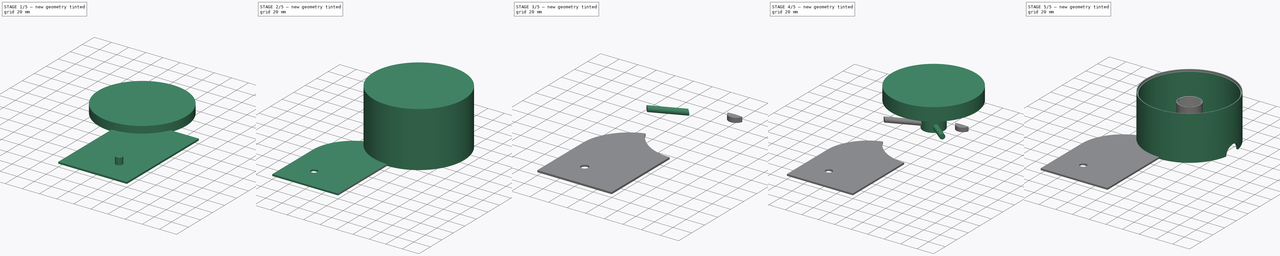
[diagram: build sequence overview — one tinted view per stage of 5, left to right]
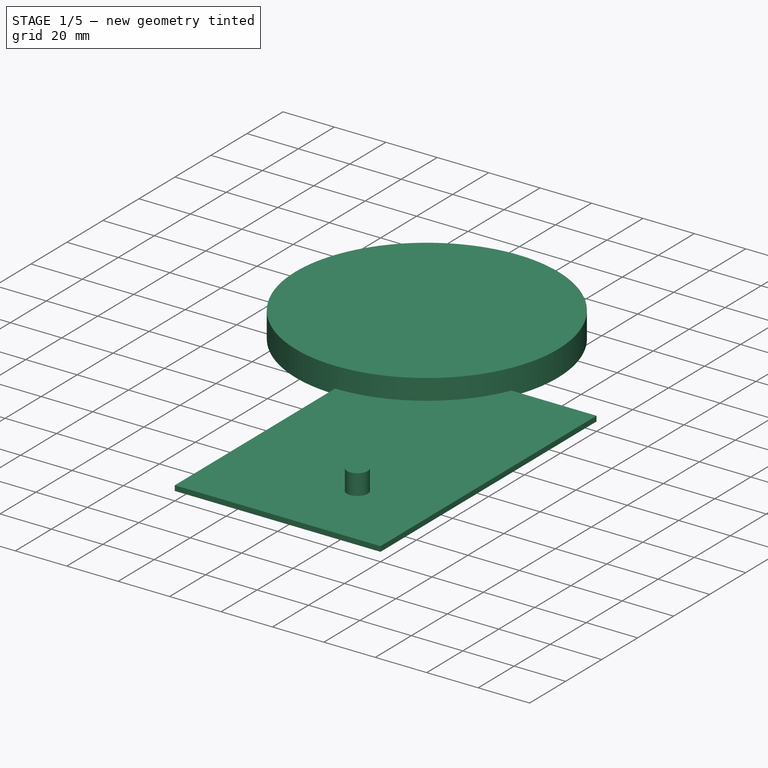
[diagram: stage 1 of 5 — iso view after this stage's code; geometry added in this stage tinted green]
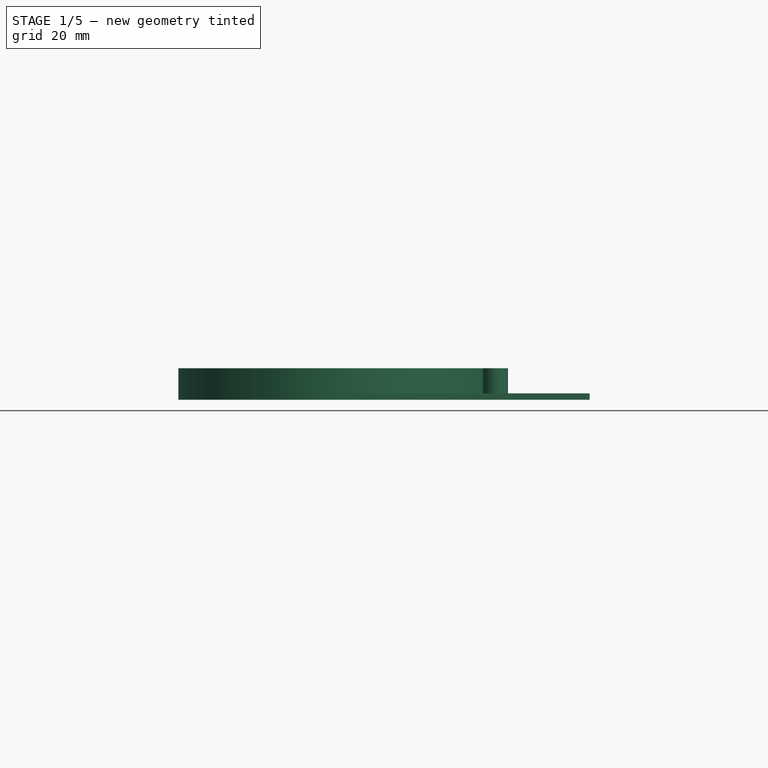
[diagram: stage 1 of 5 — front view after this stage's code; geometry added in this stage tinted green]
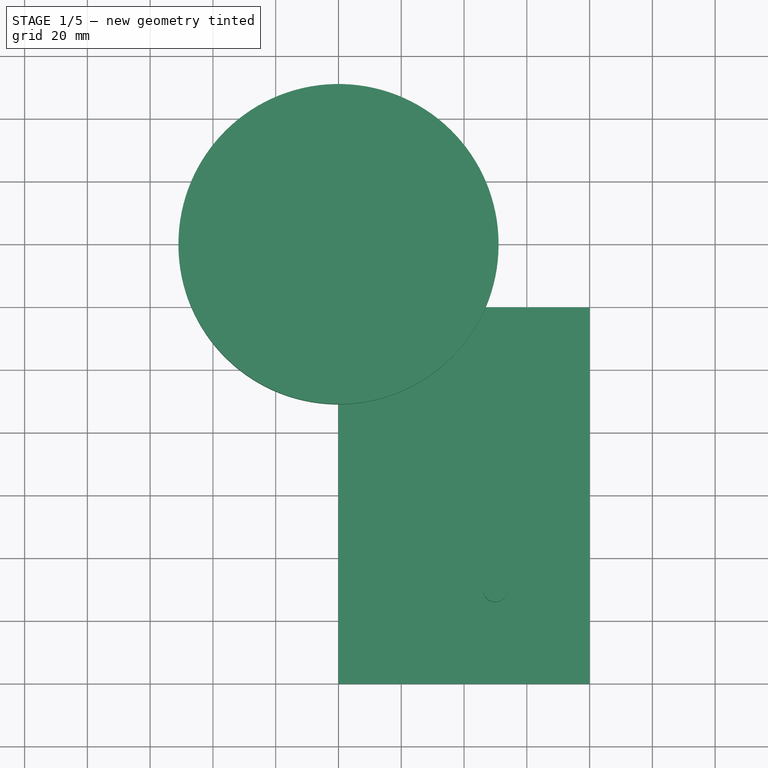
[diagram: stage 1 of 5 — top view after this stage's code; geometry added in this stage tinted green]
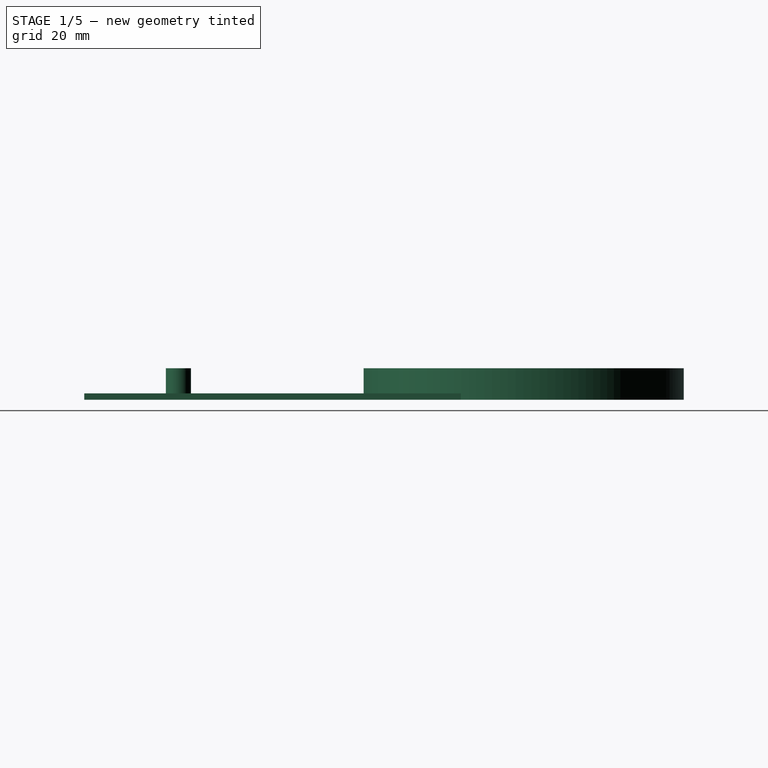
[diagram: stage 1 of 5 — right view after this stage's code; geometry added in this stage tinted green]
FCSTD DOCUMENT  (FreeCAD 0.16R6712 (Git))
Label: attachment
License: All rights reserved
LicenseURL: http://en.wikipedia.org/wiki/All_rights_reserved
objects: Part::Cylinder×14, Part::Cut×9, Part::Mirroring×4, App::DocumentObjectGroup×2, Sketcher::SketchObject×1, Part::Sweep×1, Part::Box×1, Part::Fillet×1, Part::MultiCommon×1
note: 32 computed .brp shape members not serialized (recipe doc carries the construction recipe); baked Part::Feature solids carry a one-line shape summary decoded from their .brp

FEATURE [App::DocumentObjectGroup] Group001  label="Combined"
  Group = -> [Cut005,Group,Part__Mirroring002,Part__Mirroring003]
FEATURE [Part::Box] Box  label="Cube"
  Height = 2
  Length = 80
  Placement = pos=(0,-140,0) rot=(0,0,1;0rad)
  Width = 120
FEATURE [Part::Cylinder] Cylinder
  Angle = 360
  Height = 10
  Placement = pos=(50,-110,0) rot=(0,0,1;0rad)
  Radius = 4
  expr: Placement.Base.y = -110
FEATURE [Part::Cylinder] Cylinder016  label="Cylinder017"
  Angle = 360
  Height = 10
  Radius = 51
FEATURE [Part::Cylinder] Cylinder017  label="Cylinder018"
  Angle = 360
  Height = 5
  Placement = pos=(0,51,0) rot=(0,0,1;0rad)
  Radius = 8
FEATURE [Part::Cylinder] Cylinder018  label="Cylinder019"
  Angle = 360
  Height = 10
  Radius = 50
FEATURE [Part::MultiCommon] Common
  Shapes = -> [Cylinder017,Cylinder018]
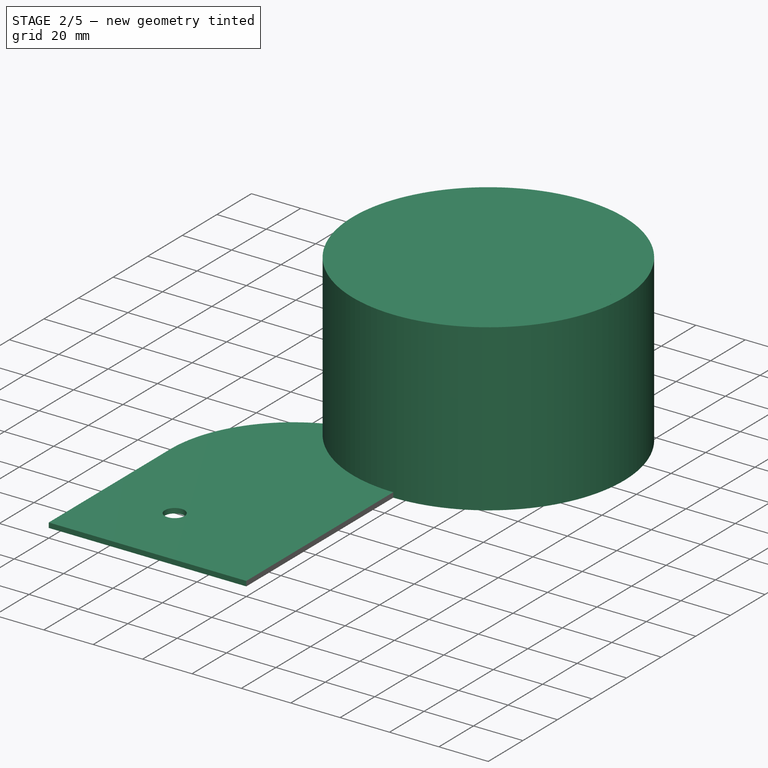
[diagram: stage 2 of 5 — iso view after this stage's code; geometry added in this stage tinted green]
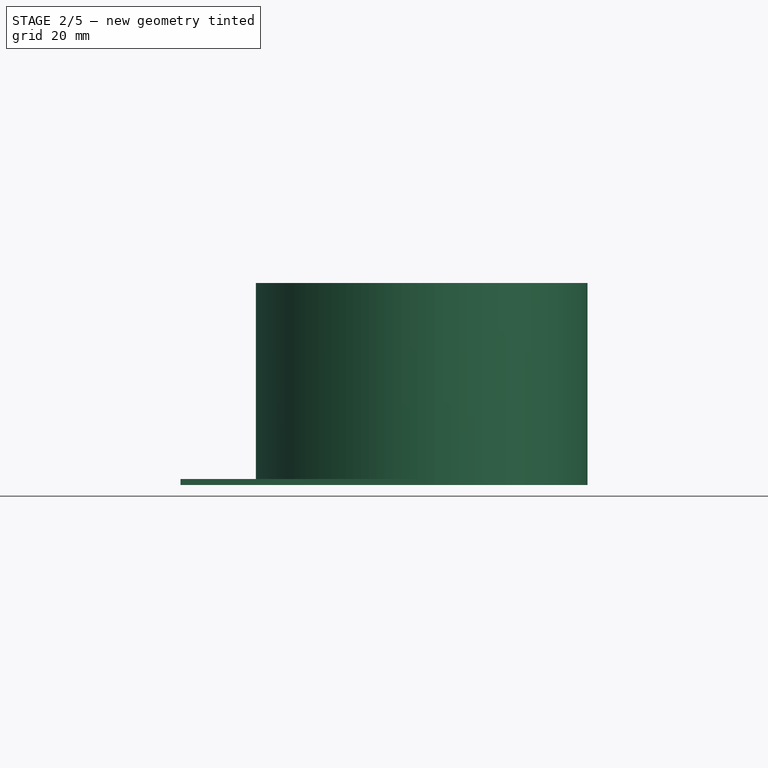
[diagram: stage 2 of 5 — front view after this stage's code; geometry added in this stage tinted green]
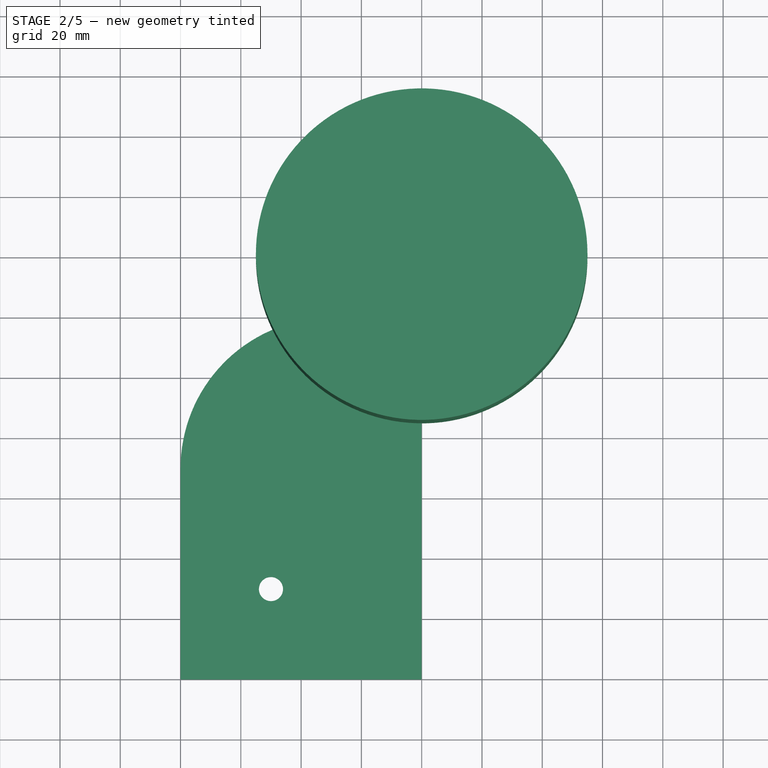
[diagram: stage 2 of 5 — top view after this stage's code; geometry added in this stage tinted green]
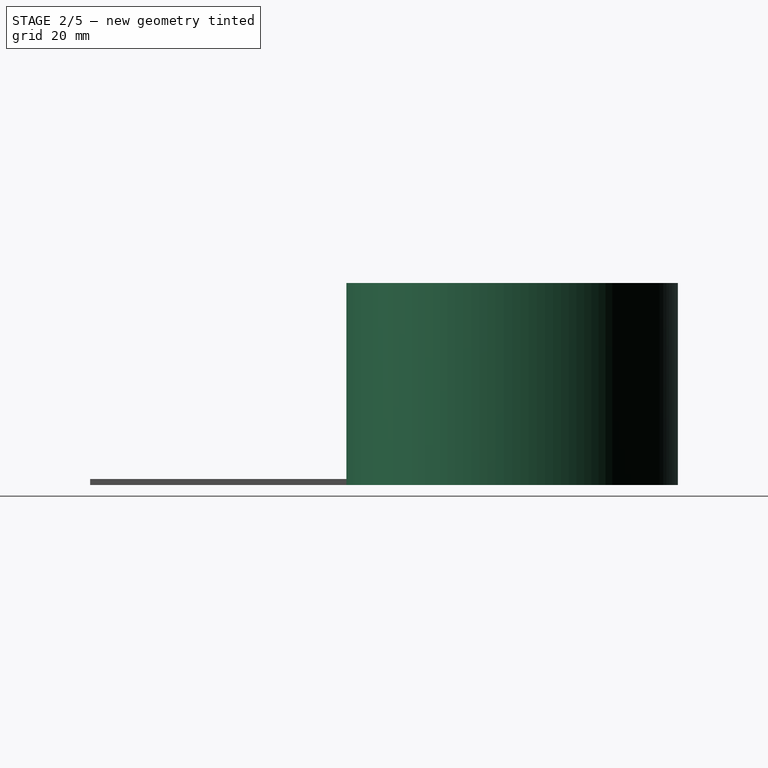
[diagram: stage 2 of 5 — right view after this stage's code; geometry added in this stage tinted green]
FEATURE [Part::Cylinder] Cylinder014  label="Outer001"
  Angle = 360
  Height = 67
  Radius = 55
FEATURE [Part::Cylinder] Cylinder015  label="Inner001"
  Angle = 360
  Height = 67
  Radius = 50
FEATURE [Part::Fillet] Fillet
  Base = -> Box
  Edges = 1 edges r=50: [Edge7]
FEATURE [Part::Cut] Cut
  Base = -> Fillet
  Tool = -> Cylinder
FEATURE [Part::Cut] Cut010
  Base = -> Cut
  Tool = -> Cylinder016
FEATURE [Part::Mirroring] Part__Mirroring  label="Cut010 (Mirror #4)"
  Base = (0,0,0)
  Normal = (1,0,0)
  Source = -> Cut010
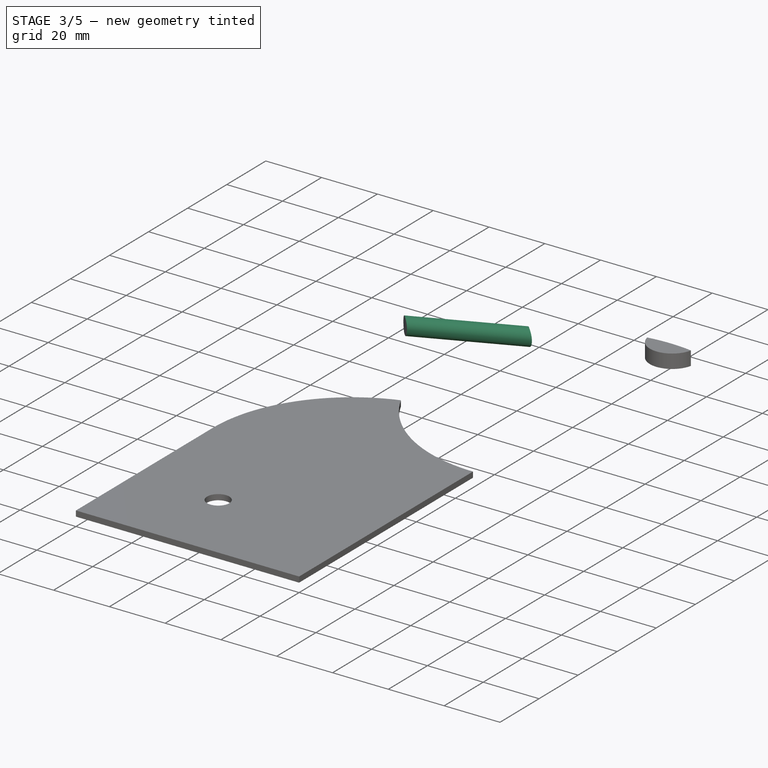
[diagram: stage 3 of 5 — iso view after this stage's code; geometry added in this stage tinted green]
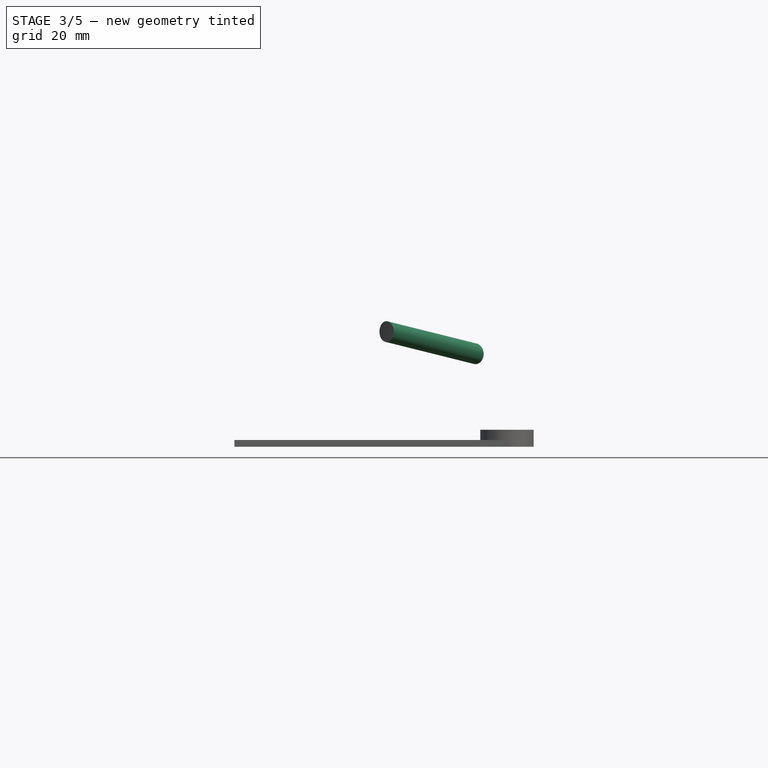
[diagram: stage 3 of 5 — front view after this stage's code; geometry added in this stage tinted green]
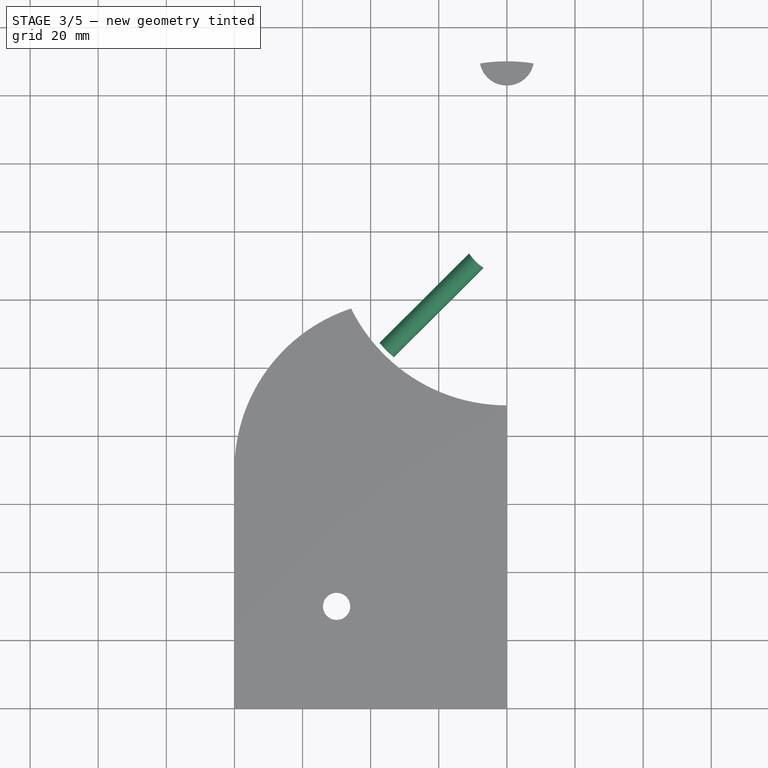
[diagram: stage 3 of 5 — top view after this stage's code; geometry added in this stage tinted green]
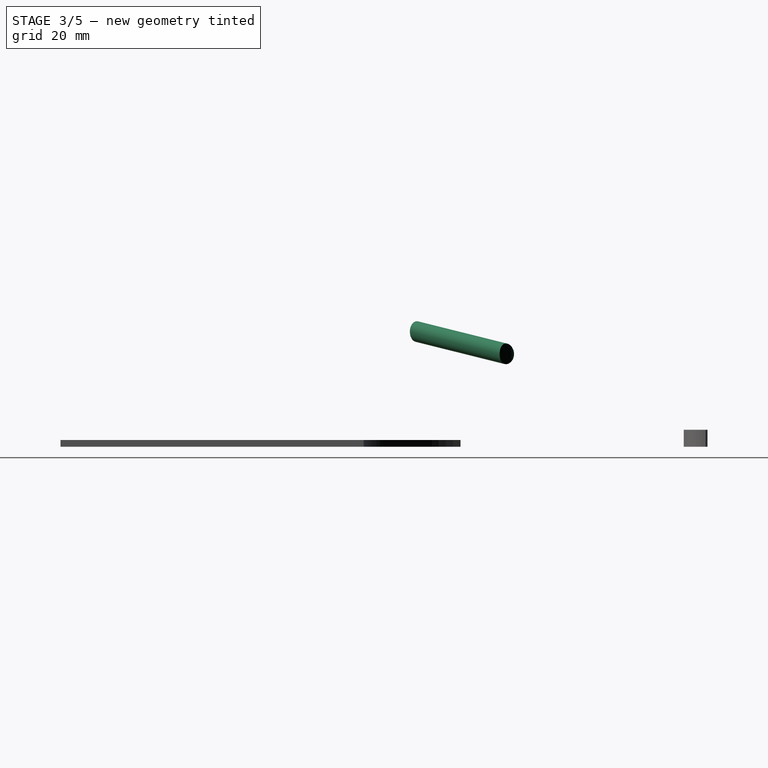
[diagram: stage 3 of 5 — right view after this stage's code; geometry added in this stage tinted green]
FEATURE [App::DocumentObjectGroup] Group  label="Screwhole"
  Group = -> [Sweep,Cut006]
FEATURE [Part::Cylinder] Cylinder012  label="Support"
  Angle = 360
  Height = 54
  Placement = pos=(0,0,25) rot=(0,1,0;1.39626rad)
  Radius = 3
FEATURE [Part::Cylinder] Cylinder013  label="Cylinder016"
  Angle = 360
  Height = 60
  Radius = 13
FEATURE [Part::Cut] Cut007
  Base = -> Cylinder012
  Tool = -> Cylinder013
FEATURE [Part::Cut] Cut008  label="Case001"
  Base = -> Cylinder014
  Tool = -> Cylinder015
FEATURE [Part::Cut] Cut009  label="Support Final"
  Base = -> Cut007
  Placement = pos=(0,0,0) rot=(0,0,1;0.785398rad)
  Tool = -> Cut008
FEATURE [Part::Mirroring] Part__Mirroring001  label="Support Final (Mirror #2)"
  Base = (0,0,0)
  Normal = (1,0,0)
  Source = -> Cut009
FEATURE [Part::Mirroring] Part__Mirroring003  label="Support Final (Mirror #4)"
  Base = (0,0,0)
  Normal = (0,1,0)
  Source = -> Part__Mirroring001
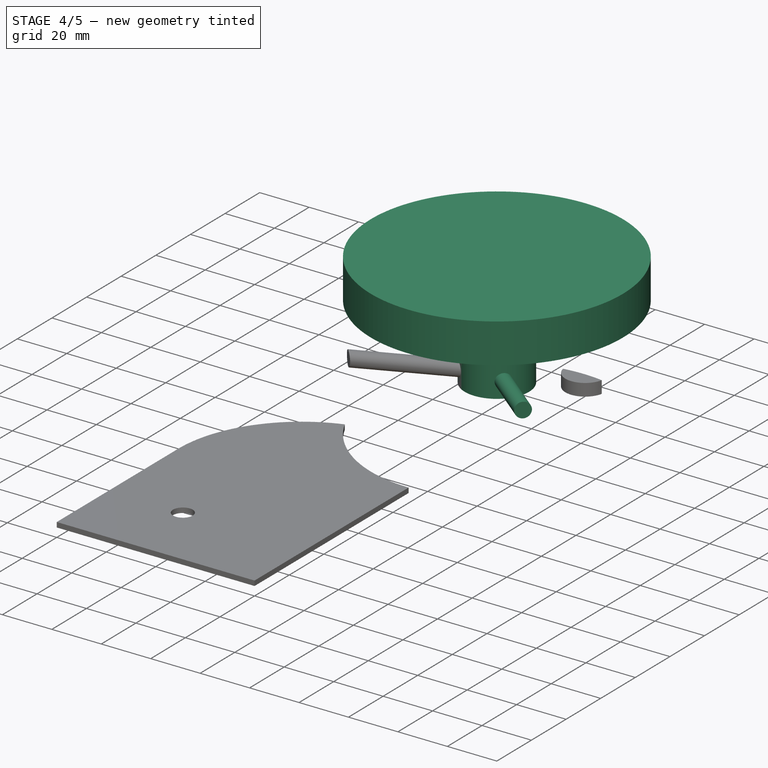
[diagram: stage 4 of 5 — iso view after this stage's code; geometry added in this stage tinted green]
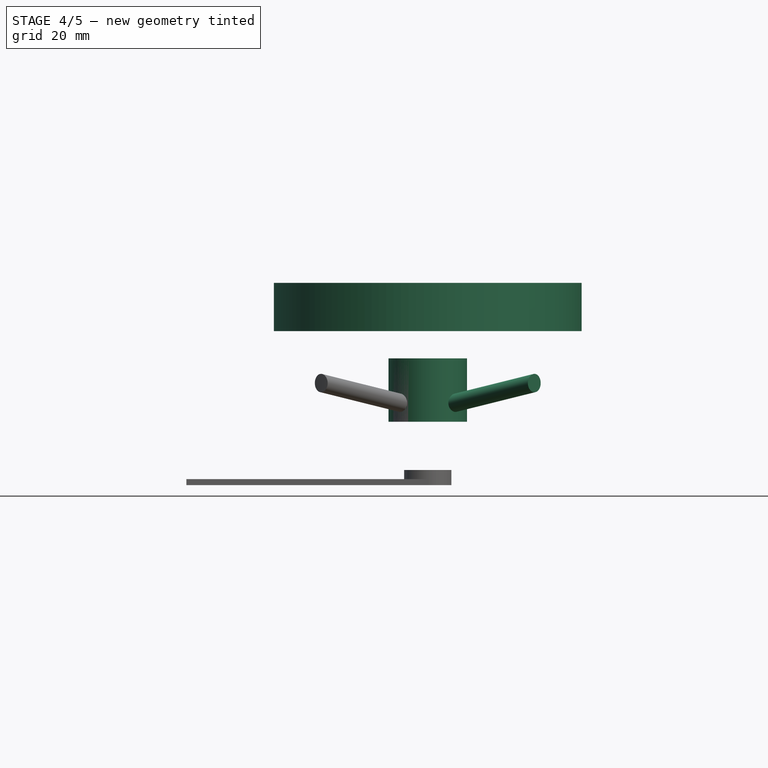
[diagram: stage 4 of 5 — front view after this stage's code; geometry added in this stage tinted green]
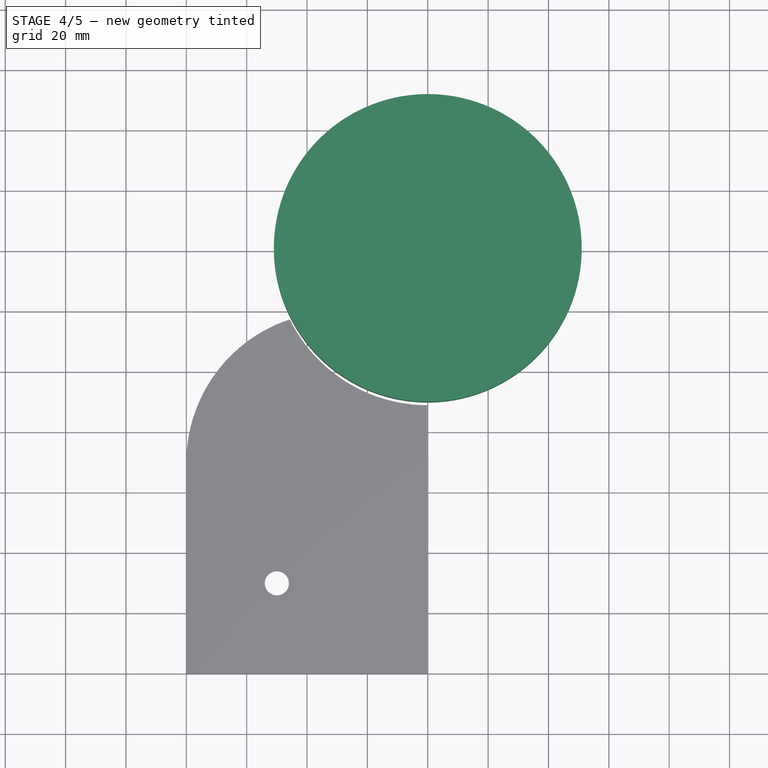
[diagram: stage 4 of 5 — top view after this stage's code; geometry added in this stage tinted green]
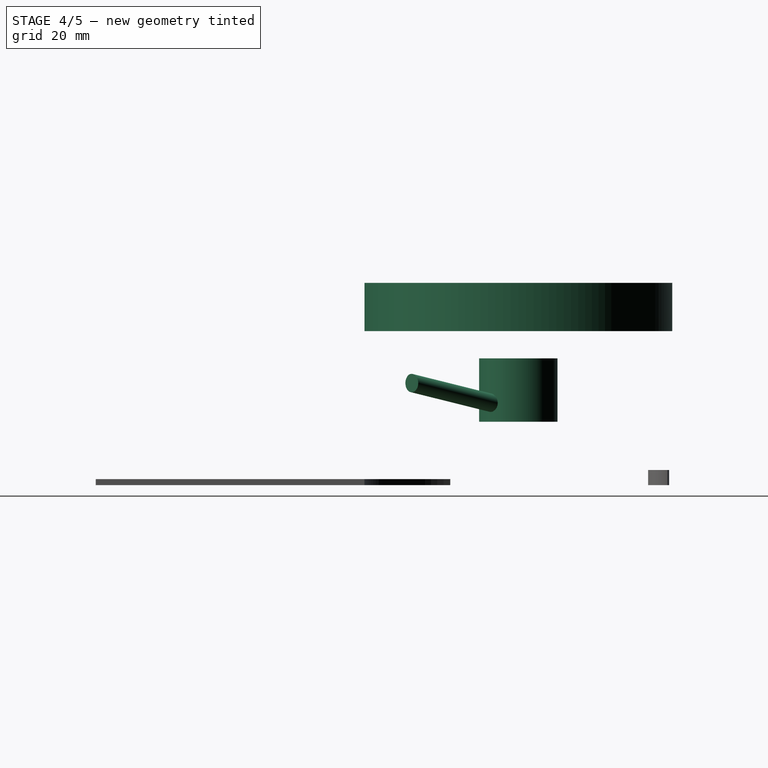
[diagram: stage 4 of 5 — right view after this stage's code; geometry added in this stage tinted green]
FEATURE [Part::Cylinder] Cylinder009  label="Cylinder004"
  Angle = 360
  Height = 16
  Placement = pos=(0,0,51) rot=(0,0,1;0rad)
  Radius = 51
FEATURE [Part::Cylinder] Cylinder010  label="Cylinder005"
  Angle = 360
  Height = 21
  Radius = 13
FEATURE [Part::Cylinder] Cylinder011  label="Cylinder006"
  Angle = 360
  Height = 21
  Radius = 12
FEATURE [Part::Cut] Cut006
  Base = -> Cylinder010
  Placement = pos=(0,0,21) rot=(0,0,1;0rad)
  Tool = -> Cylinder011
FEATURE [Sketcher::SketchObject] Sketch
  Placement = pos=(12,0,0) rot=(1,0,0;1.5708rad)
  sketch-geometry (3):
    g0: LineSegment StartX=0 StartY=0.5 StartZ=0 EndX=-0.5 EndY=0 EndZ=0
    g1: LineSegment StartX=-0.5 StartY=0 StartZ=0 EndX=0 EndY=-0.5 EndZ=0
    g2: LineSegment StartX=0 StartY=-0.5 StartZ=0 EndX=0 EndY=0.5 EndZ=0
  constraints (6):
    c: PointOnObject(g0,g-2)
    c: PointOnObject(g0,g-1)
    c: Coincident(g0,g1)
    c: Coincident(g1,g2)
    c: Coincident(g2,g0)
    c: Vertical(g2)
FEATURE [Part::Sweep] Sweep
  Frenet = true
  Placement = pos=(0,0,21.5) rot=(0,0,1;0rad)
  Sections = -> [Sketch]
  Solid = true
  Transition = 1
FEATURE [Part::Mirroring] Part__Mirroring002  label="Support Final (Mirror #3)"
  Base = (0,0,0)
  Normal = (0,1,0)
  Source = -> Cut009
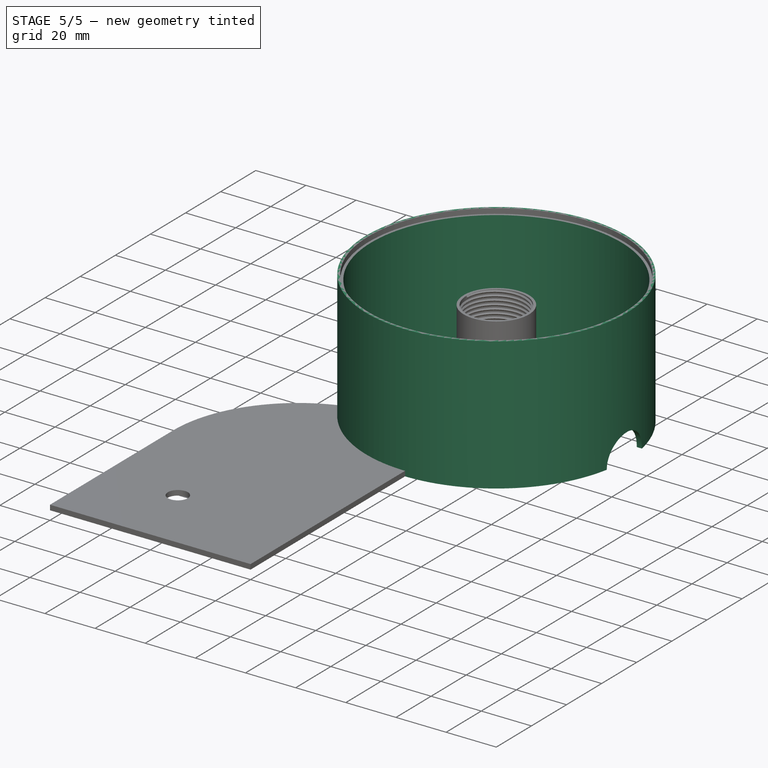
[diagram: stage 5 of 5 — iso view after this stage's code; geometry added in this stage tinted green]
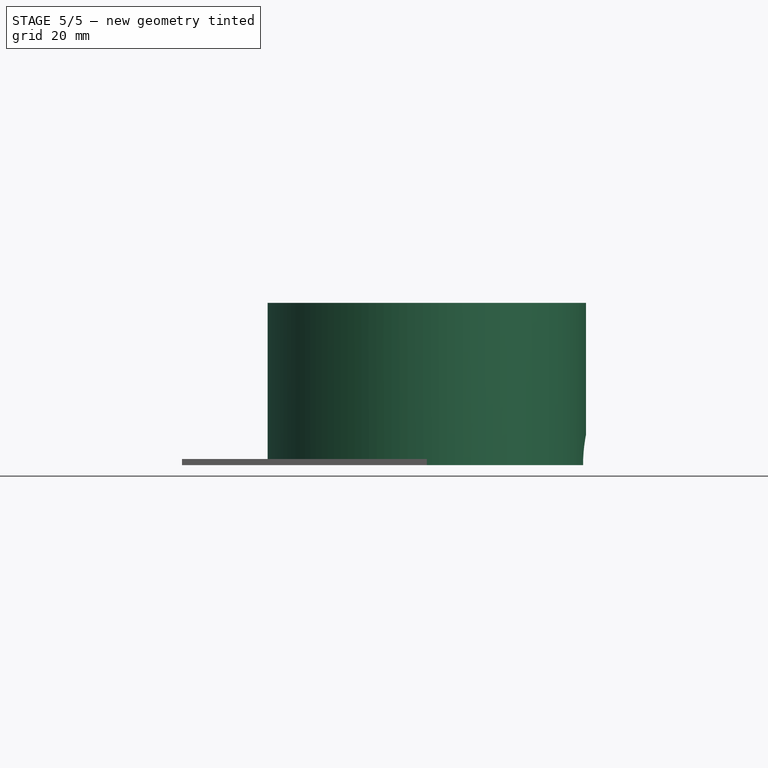
[diagram: stage 5 of 5 — front view after this stage's code; geometry added in this stage tinted green]
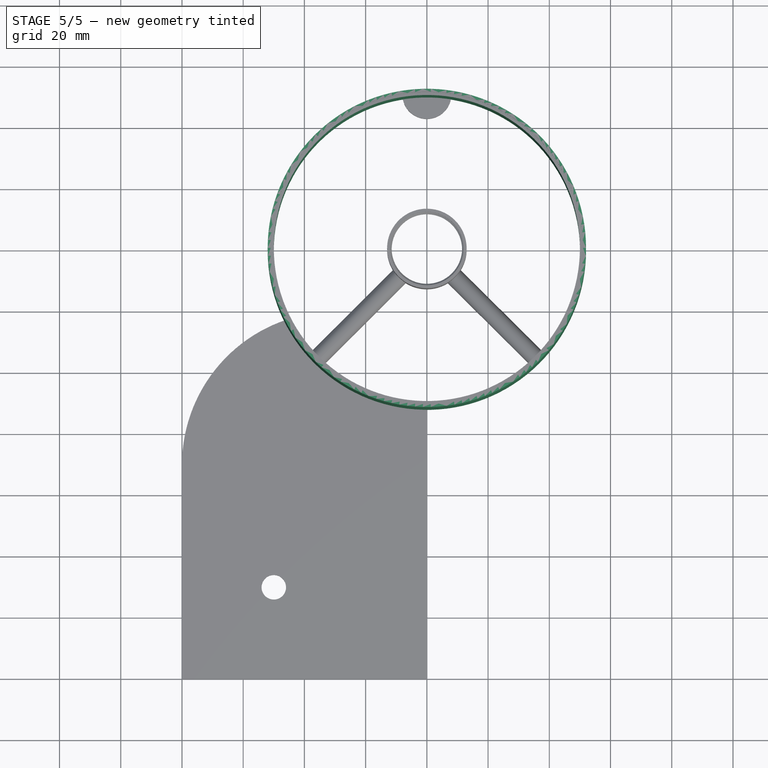
[diagram: stage 5 of 5 — top view after this stage's code; geometry added in this stage tinted green]
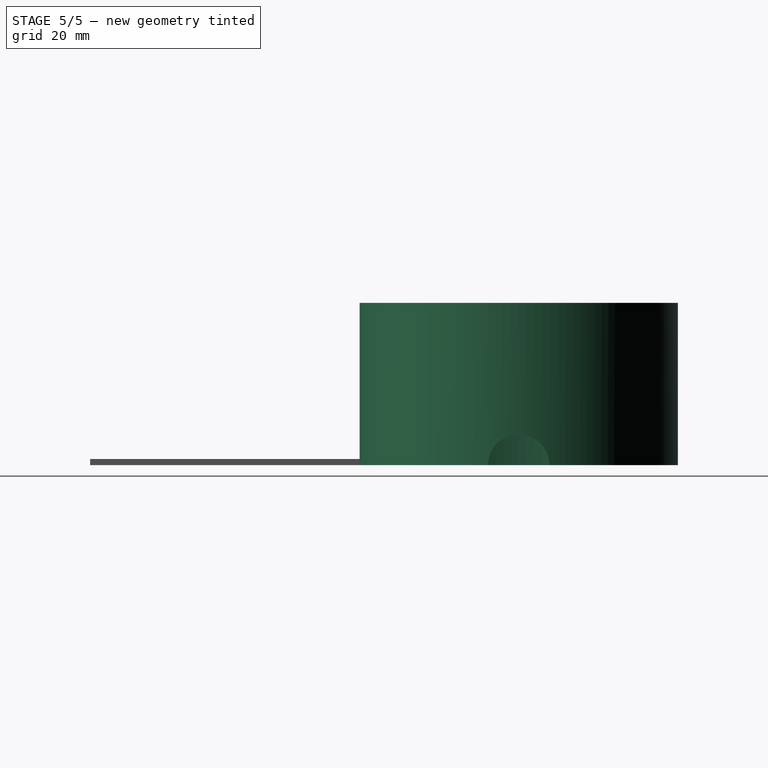
[diagram: stage 5 of 5 — right view after this stage's code; geometry added in this stage tinted green]
FEATURE [Part::Cylinder] Cylinder004  label="Outer"
  Angle = 360
  Height = 53
  Radius = 52
FEATURE [Part::Cylinder] Cylinder005  label="Inner"
  Angle = 360
  Height = 67
  Radius = 50
FEATURE [Part::Cut] Cut002  label="Case"
  Base = -> Cylinder004
  Tool = -> Cylinder005
FEATURE [Part::Cylinder] Cylinder006  label="Wire hole"
  Angle = 360
  Height = 10
  Placement = pos=(45,0,0) rot=(0,1,0;1.5708rad)
  Radius = 10
FEATURE [Part::Cut] Cut003  label="Case with hole"
  Base = -> Cut002
  Tool = -> Cylinder006
FEATURE [Part::Cut] Cut005  label="Case with edge"
  Base = -> Cut003
  Tool = -> Cylinder009
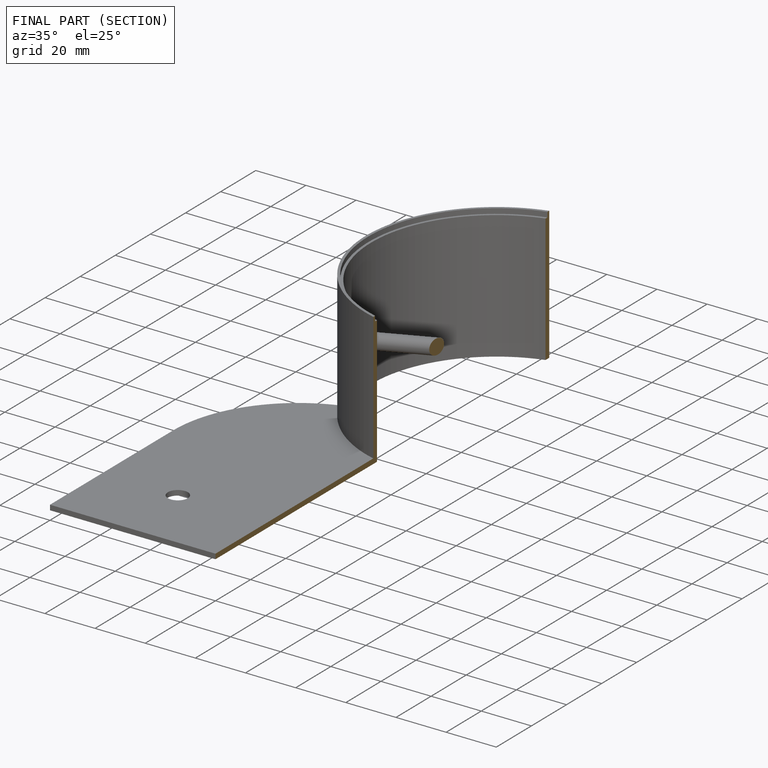
[diagram: finished part — half-section view (interior)]
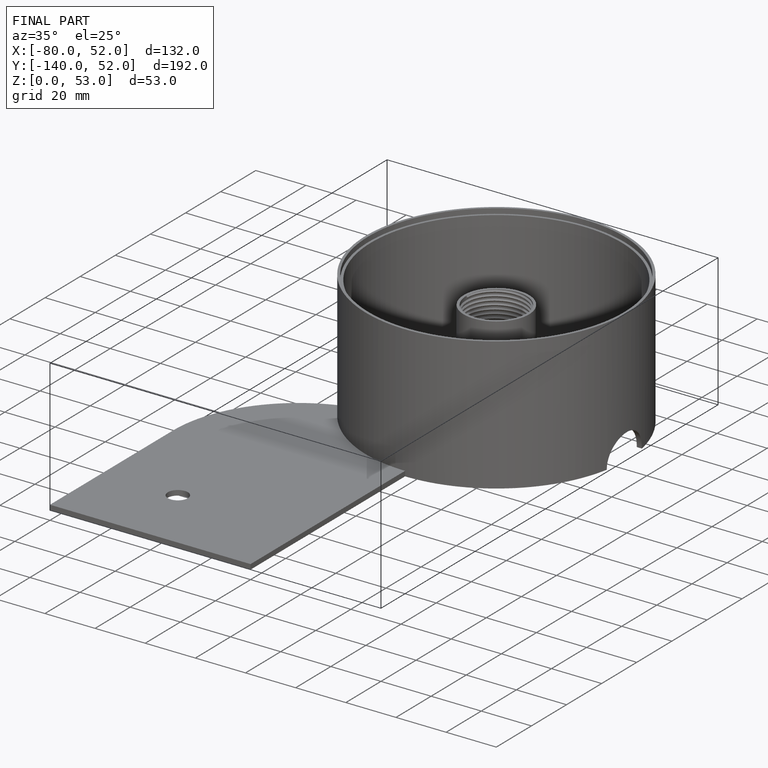
[diagram: finished part — iso view with bounding-box wireframe]
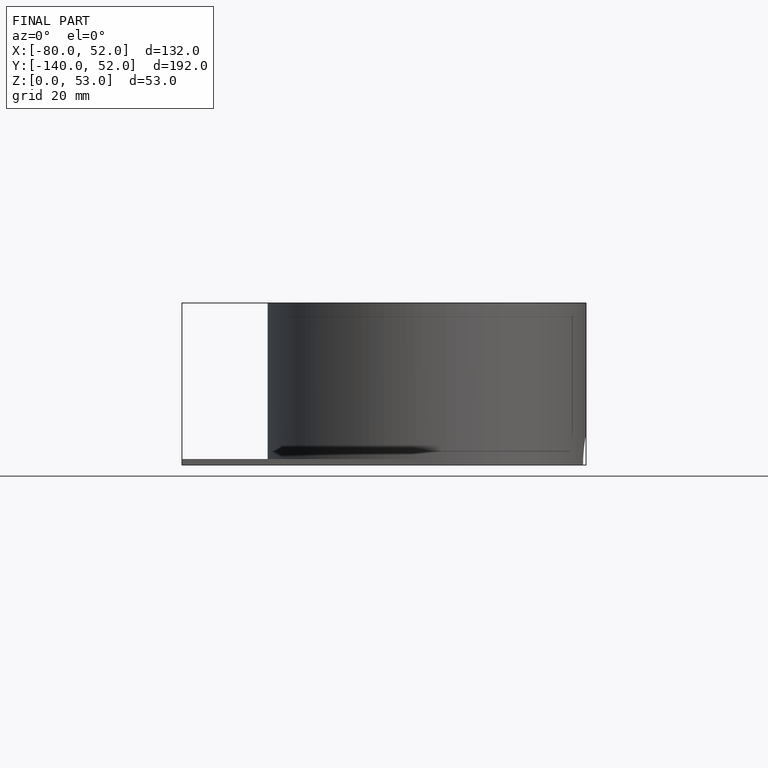
[diagram: finished part — front view with bounding-box wireframe]
